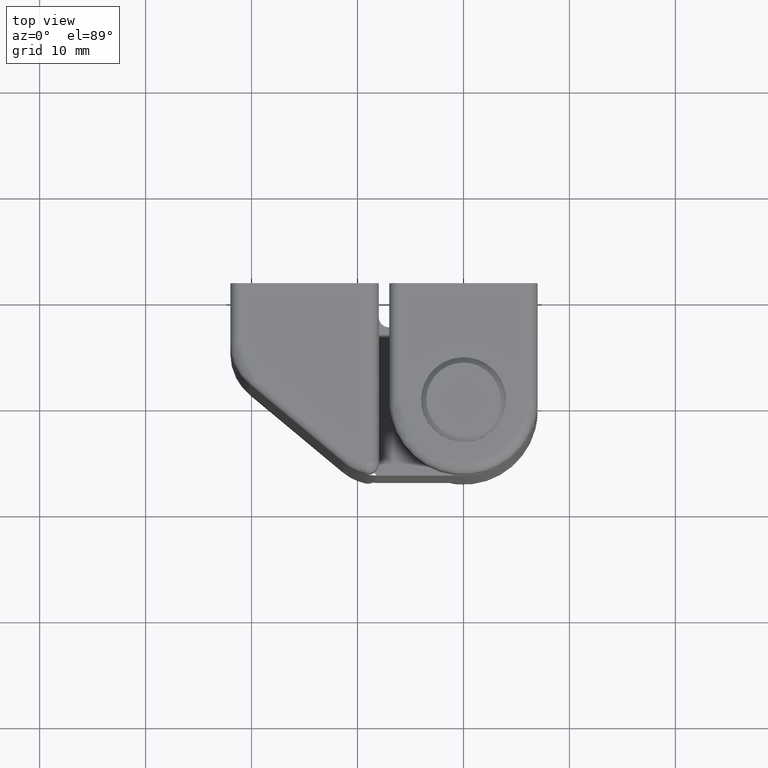
[diagram: clean part render]
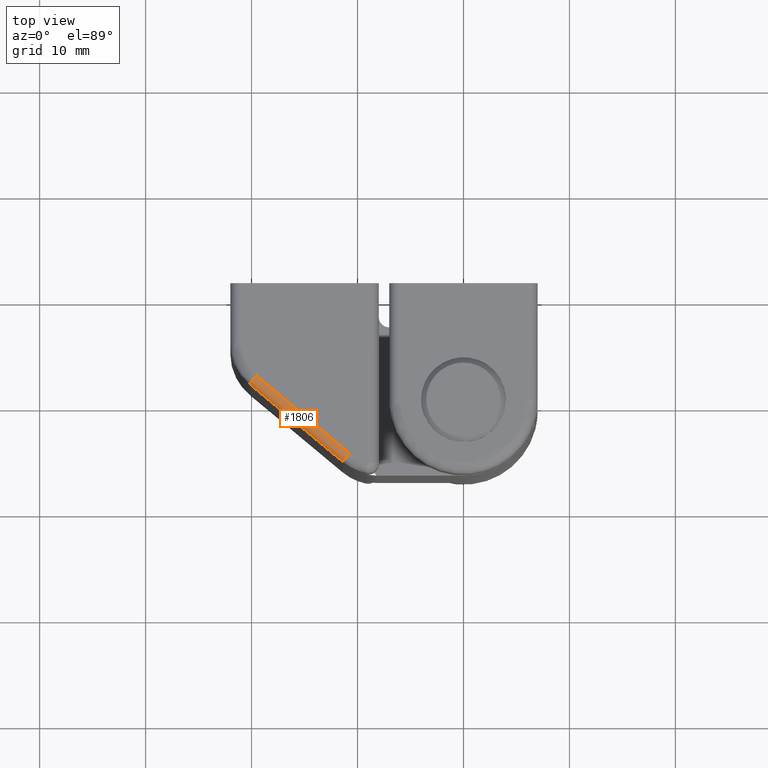
[diagram: same view with one face highlighted and labeled with its STEP entity id]
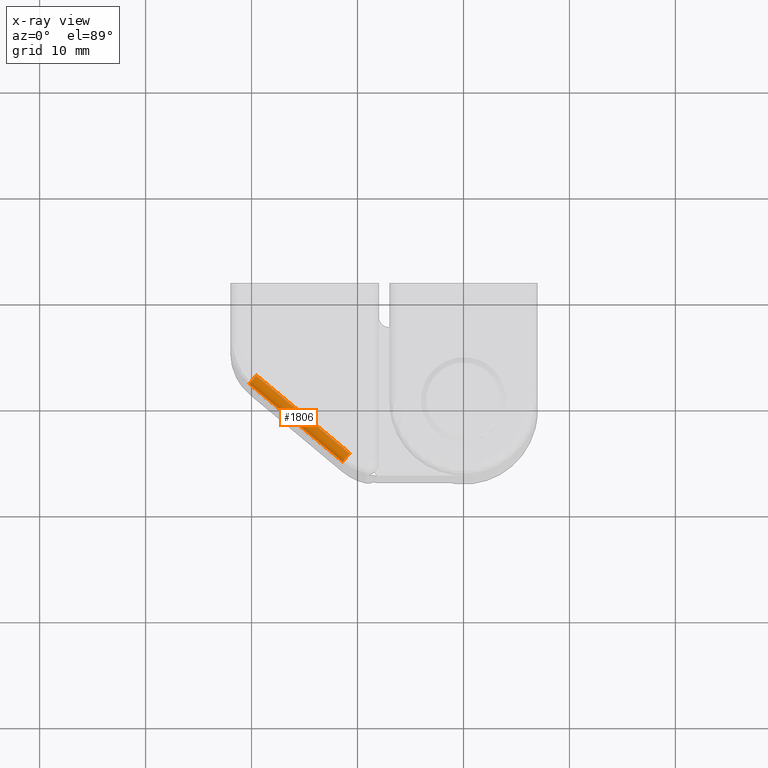
[diagram: x-ray of the same camera — body ghosted, the highlighted face saturated]
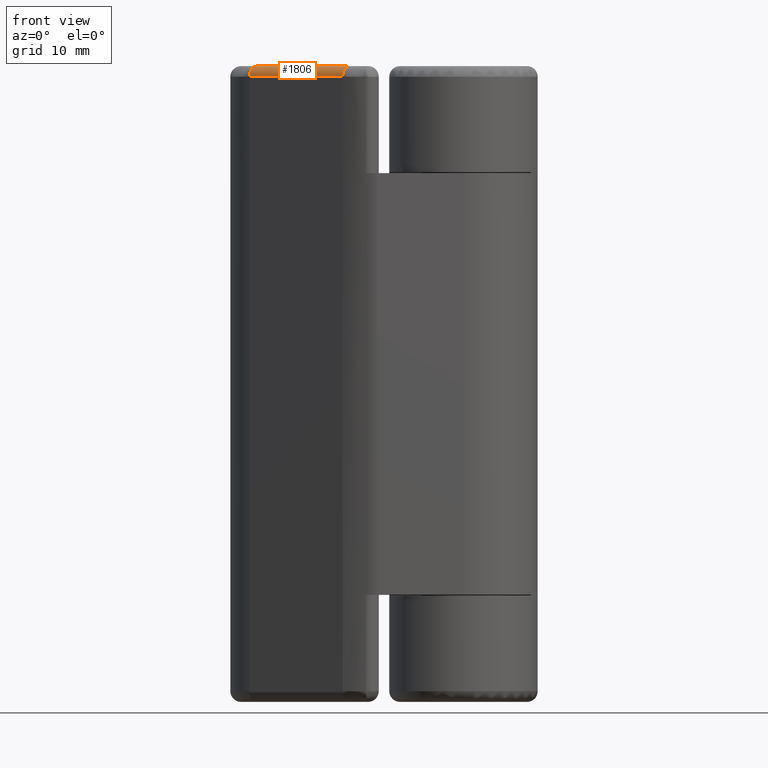
[diagram: same view with one face highlighted and labeled with its STEP entity id]
A machine part, top view. The second image highlights one B-rep face of the part: STEP entity #1806.
The next image is the same camera in x-ray: the body ghosted, the highlighted face saturated — about 0% of this face is hidden behind the body in this view.
A second angle (front view) of the same face is appended — the face is thin or edge-on in the first view.
In plain terms, the highlighted face is a freeform B-spline surface patch.
Its self-contained STEP definition (entity closure, byte-faithful):
#1713=CARTESIAN_POINT('',(-20.200928000000001,1.500767000000000,59.0));
#1714=VERTEX_POINT('',#1713);
#1715=CARTESIAN_POINT('',(-19.560742852790600,2.268987656644110,60.0));
#1716=VERTEX_POINT('',#1715);
#1717=CARTESIAN_POINT('',(-20.200928000000001,1.500767000000000,59.0));
#1718=CARTESIAN_POINT('',(-20.200926849350882,1.500766041126757,59.999999999998870));
#1719=CARTESIAN_POINT('',(-19.560742852790600,2.268987656644110,60.0));
#1727=(BOUNDED_CURVE()B_SPLINE_CURVE(2,(#1717,#1718,#1719),.UNSPECIFIED.,.F.,.U.)CURVE()GEOMETRIC_REPRESENTATION_ITEM()QUASI_UNIFORM_CURVE()RATIONAL_B_SPLINE_CURVE((1.0,0.707106781186548,1.0))REPRESENTATION_ITEM(''));
#1728=EDGE_CURVE('',#1714,#1716,#1727,.T.);
#1760=CARTESIAN_POINT('',(-10.505440032457360,-5.220310282915440,59.999048221581859));
#1761=CARTESIAN_POINT('',(-19.758504058139941,2.490568178113600,59.999048221581859));
#1762=CARTESIAN_POINT('',(-11.222241045097194,-6.080472415823108,60.047934492181845));
#1763=CARTESIAN_POINT('',(-20.475305070779779,1.630406045205939,60.047934492181845));
#1764=CARTESIAN_POINT('',(-11.171975473985992,-6.020153666133280,58.929941882698373));
#1765=CARTESIAN_POINT('',(-20.425039499668568,1.690724794895768,58.929941882698387));
#1773=(BOUNDED_SURFACE()B_SPLINE_SURFACE(1,2,((#1760,#1762,#1764),(#1761,#1763,#1765)),.UNSPECIFIED.,.F.,.F.,.U.)B_SPLINE_SURFACE_WITH_KNOTS((2,2),(3,3),(0.0,12.044784784467630),(0.0,0.994386611807067),.UNSPECIFIED.)GEOMETRIC_REPRESENTATION_ITEM()RATIONAL_B_SPLINE_SURFACE(((1.0,0.664513892853616,0.996233572494503),(1.0,0.664513892853616,0.996233572494503)))REPRESENTATION_ITEM('')SURFACE());
#1774=CARTESIAN_POINT('',(-11.393728451765121,-5.838558126247491,59.0));
#1775=VERTEX_POINT('',#1774);
#1776=CARTESIAN_POINT('',(-10.753544201223200,-5.070336206567900,60.0));
#1777=VERTEX_POINT('',#1776);
#1778=CARTESIAN_POINT('',(-11.393728451765130,-5.838558126247487,59.0));
#1779=CARTESIAN_POINT('',(-11.393981656554173,-5.838346780630698,59.414213454276755));
#1780=CARTESIAN_POINT('',(-11.206476027644870,-5.613339786166907,59.707106585048400));
#1781=CARTESIAN_POINT('',(-11.018970398735574,-5.388332791703115,59.999999715820046));
#1782=CARTESIAN_POINT('',(-10.753544201223200,-5.070336206567900,60.0));
#1790=(BOUNDED_CURVE()B_SPLINE_CURVE(2,(#1778,#1779,#1780,#1781,#1782),.UNSPECIFIED.,.F.,.U.)B_SPLINE_CURVE_WITH_KNOTS((3,2,3),(0.0,0.500000000000000,1.0),.UNSPECIFIED.)CURVE()GEOMETRIC_REPRESENTATION_ITEM()RATIONAL_B_SPLINE_CURVE((1.0,0.923879524929201,1.0,0.923879524929201,1.0))REPRESENTATION_ITEM(''));
#1791=EDGE_CURVE('',#1775,#1777,#1790,.T.);
#1792=ORIENTED_EDGE('',*,*,#1791,.T.);
#1793=CARTESIAN_POINT('',(-19.560742852790600,2.268987656644110,60.0));
#1794=CARTESIAN_POINT('',(-10.753544201223200,-5.070336206567900,60.0));
#1795=QUASI_UNIFORM_CURVE('',1,(#1793,#1794),.UNSPECIFIED.,.F.,.U.);
#1796=EDGE_CURVE('',#1716,#1777,#1795,.T.);
#1797=ORIENTED_EDGE('',*,*,#1796,.F.);
#1798=ORIENTED_EDGE('',*,*,#1728,.F.);
#1799=CARTESIAN_POINT('',(-11.393728451765121,-5.838558126247491,59.0));
#1800=CARTESIAN_POINT('',(-20.200928000000001,1.500767000000000,59.0));
#1801=QUASI_UNIFORM_CURVE('',1,(#1799,#1800),.UNSPECIFIED.,.F.,.U.);
#1802=EDGE_CURVE('',#1775,#1714,#1801,.T.);
#1803=ORIENTED_EDGE('',*,*,#1802,.F.);
#1804=EDGE_LOOP('',(#1792,#1797,#1798,#1803));
#1805=FACE_OUTER_BOUND('',#1804,.T.);
#1806=ADVANCED_FACE('',(#1805),#1773,.T.);